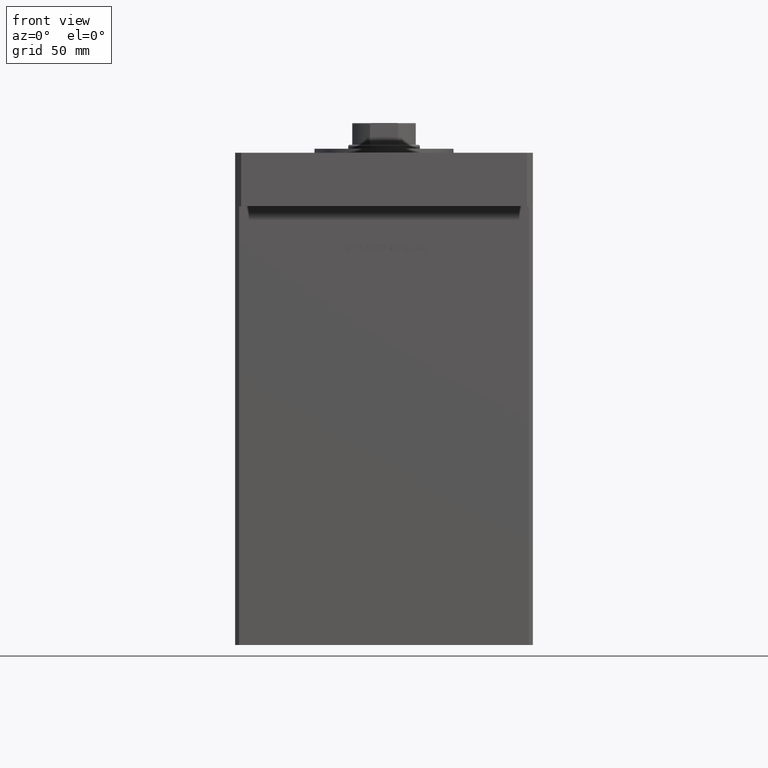
[diagram: clean part render]
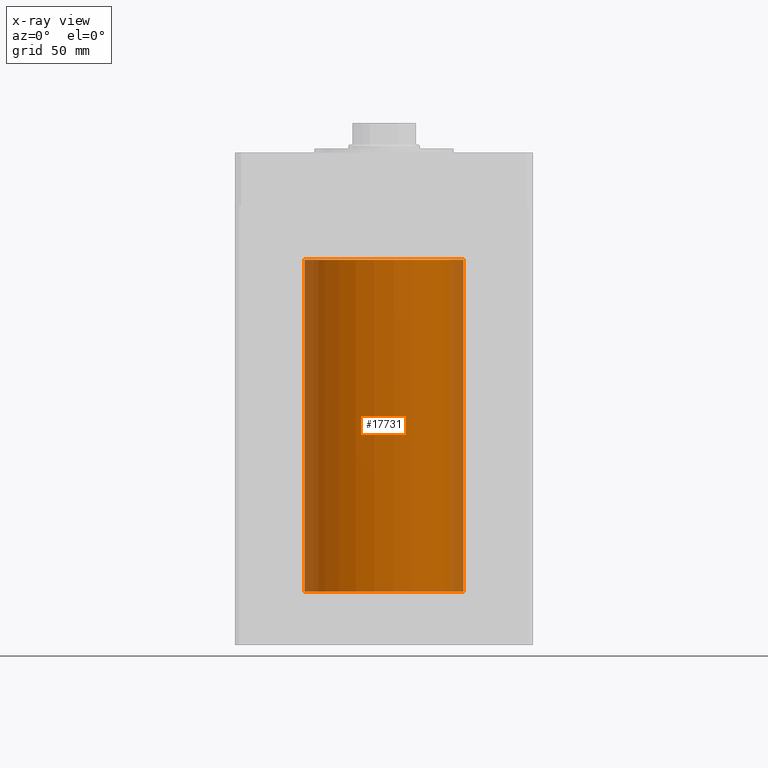
[diagram: x-ray — body ghosted, one internal face saturated and labeled with its STEP entity id]
A machine part, front view, then the same camera in x-ray: the body is ghosted and one INTERNAL B-rep face — a face not visible from any outside direction — is saturated and labeled: STEP entity #17731.
In plain terms, the highlighted cylindrical surface (partial cylindrical patch) has radius 40 mm, axis along (-0, -0, -1).
Its self-contained STEP definition (entity closure, byte-faithful):
#2708 = VECTOR ( 'NONE', #50485, 1000.000000000000000 ) ;
#5651 = VERTEX_POINT ( 'NONE', #18829 ) ;
#6352 = CARTESIAN_POINT ( 'NONE',  ( 0.000000000000000000, 0.000000000000000000, 0.000000000000000000 ) ) ;
#7593 = AXIS2_PLACEMENT_3D ( 'NONE', #6352, #27062, #22489 ) ;
#9116 = CARTESIAN_POINT ( 'NONE',  ( 40.00000000000000000, 4.898587196589412237E-15, 167.0000000000000000 ) ) ;
#12670 = FACE_OUTER_BOUND ( 'NONE', #28646, .T. ) ;
#13227 = EDGE_CURVE ( 'NONE', #5651, #40555, #42409, .T. ) ;
#13445 = VERTEX_POINT ( 'NONE', #22424 ) ;
#15354 = EDGE_CURVE ( 'NONE', #5651, #13445, #51765, .T. ) ;
#17686 = ORIENTED_EDGE ( 'NONE', *, *, #13227, .F. ) ;
#17731 = ADVANCED_FACE ( 'NONE', ( #12670 ), #31853, .F. ) ;
#18310 = AXIS2_PLACEMENT_3D ( 'NONE', #23524, #24778, #39930 ) ;
#18829 = CARTESIAN_POINT ( 'NONE',  ( -40.00000000000000000, 0.000000000000000000, 167.0000000000000000 ) ) ;
#21761 = DIRECTION ( 'NONE',  ( -0.000000000000000000, 0.000000000000000000, 1.000000000000000000 ) ) ;
#22424 = CARTESIAN_POINT ( 'NONE',  ( 40.00000000000000000, 4.898587196589412237E-15, 167.0000000000000000 ) ) ;
#22489 = DIRECTION ( 'NONE',  ( 1.000000000000000000, 0.000000000000000000, 0.000000000000000000 ) ) ;
#23524 = CARTESIAN_POINT ( 'NONE',  ( 0.000000000000000000, 0.000000000000000000, 167.0000000000000000 ) ) ;
#24522 = CARTESIAN_POINT ( 'NONE',  ( 40.00000000000000000, 4.898587196589412237E-15, 0.000000000000000000 ) ) ;
#24778 = DIRECTION ( 'NONE',  ( -0.000000000000000000, -0.000000000000000000, -1.000000000000000000 ) ) ;
#25130 = EDGE_CURVE ( 'NONE', #13445, #27857, #45973, .T. ) ;
#27062 = DIRECTION ( 'NONE',  ( -0.000000000000000000, 0.000000000000000000, 1.000000000000000000 ) ) ;
#27857 = VERTEX_POINT ( 'NONE', #24522 ) ;
#28562 = AXIS2_PLACEMENT_3D ( 'NONE', #46243, #21761, #38167 ) ;
#28646 = EDGE_LOOP ( 'NONE', ( #39436, #49177, #31941, #17686 ) ) ;
#31608 = VECTOR ( 'NONE', #42729, 1000.000000000000000 ) ;
#31679 = CIRCLE ( 'NONE', #7593, 40.00000000000000000 ) ;
#31853 = CYLINDRICAL_SURFACE ( 'NONE', #18310, 40.00000000000000000 ) ;
#31941 = ORIENTED_EDGE ( 'NONE', *, *, #44531, .F. ) ;
#38167 = DIRECTION ( 'NONE',  ( 1.000000000000000000, 0.000000000000000000, 0.000000000000000000 ) ) ;
#39436 = ORIENTED_EDGE ( 'NONE', *, *, #15354, .T. ) ;
#39930 = DIRECTION ( 'NONE',  ( -1.000000000000000000, 0.000000000000000000, 0.000000000000000000 ) ) ;
#40555 = VERTEX_POINT ( 'NONE', #45391 ) ;
#42409 = LINE ( 'NONE', #50749, #2708 ) ;
#42729 = DIRECTION ( 'NONE',  ( -0.000000000000000000, -0.000000000000000000, -1.000000000000000000 ) ) ;
#44531 = EDGE_CURVE ( 'NONE', #40555, #27857, #31679, .T. ) ;
#45391 = CARTESIAN_POINT ( 'NONE',  ( -40.00000000000000000, 0.000000000000000000, 0.000000000000000000 ) ) ;
#45973 = LINE ( 'NONE', #9116, #31608 ) ;
#46243 = CARTESIAN_POINT ( 'NONE',  ( 0.000000000000000000, 0.000000000000000000, 167.0000000000000000 ) ) ;
#49177 = ORIENTED_EDGE ( 'NONE', *, *, #25130, .T. ) ;
#50485 = DIRECTION ( 'NONE',  ( -0.000000000000000000, -0.000000000000000000, -1.000000000000000000 ) ) ;
#50749 = CARTESIAN_POINT ( 'NONE',  ( -40.00000000000000000, 0.000000000000000000, 167.0000000000000000 ) ) ;
#51765 = CIRCLE ( 'NONE', #28562, 40.00000000000000000 ) ;